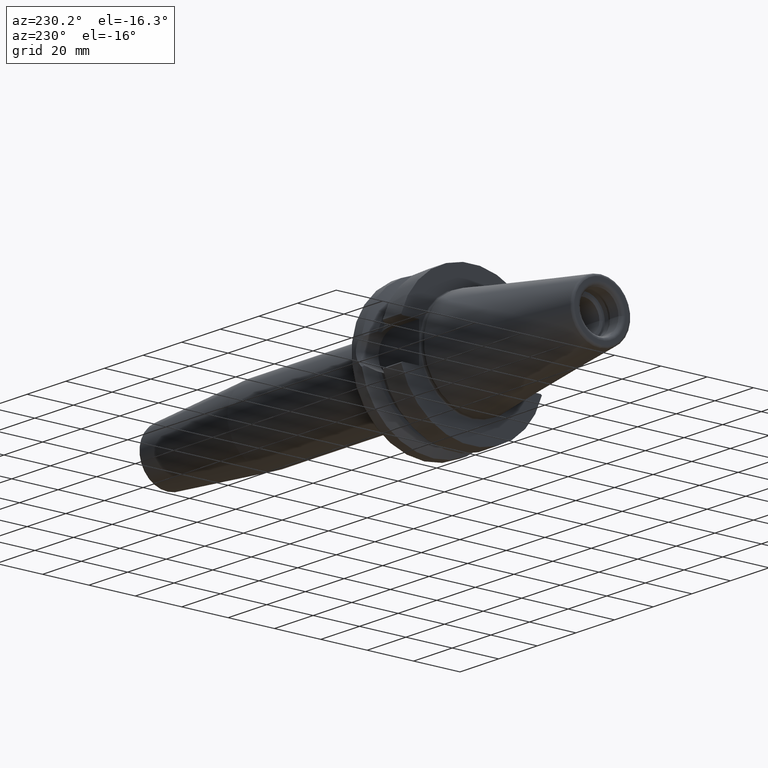
[diagram: clean part render]
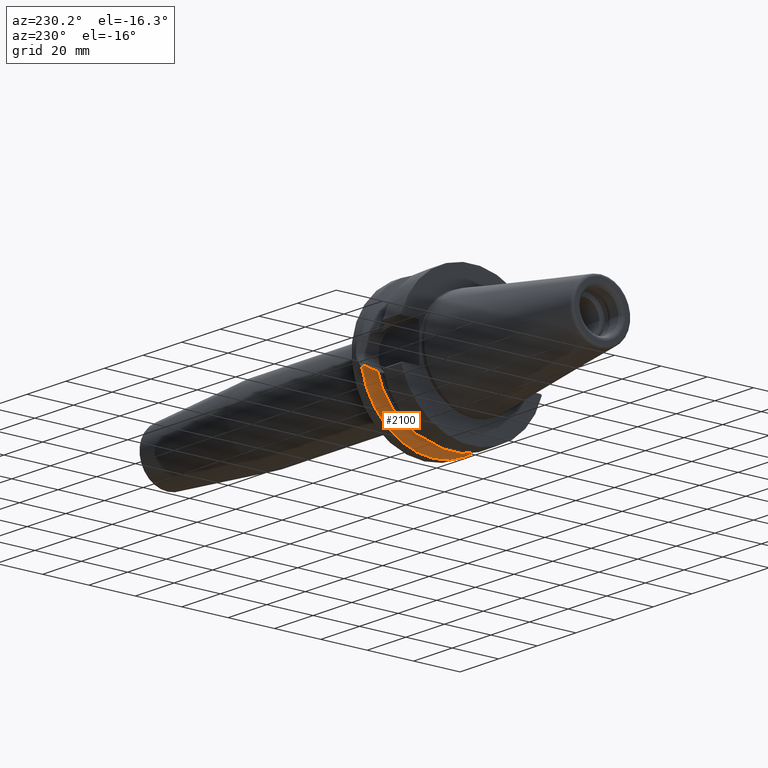
[diagram: same view with one face highlighted and labeled with its STEP entity id]
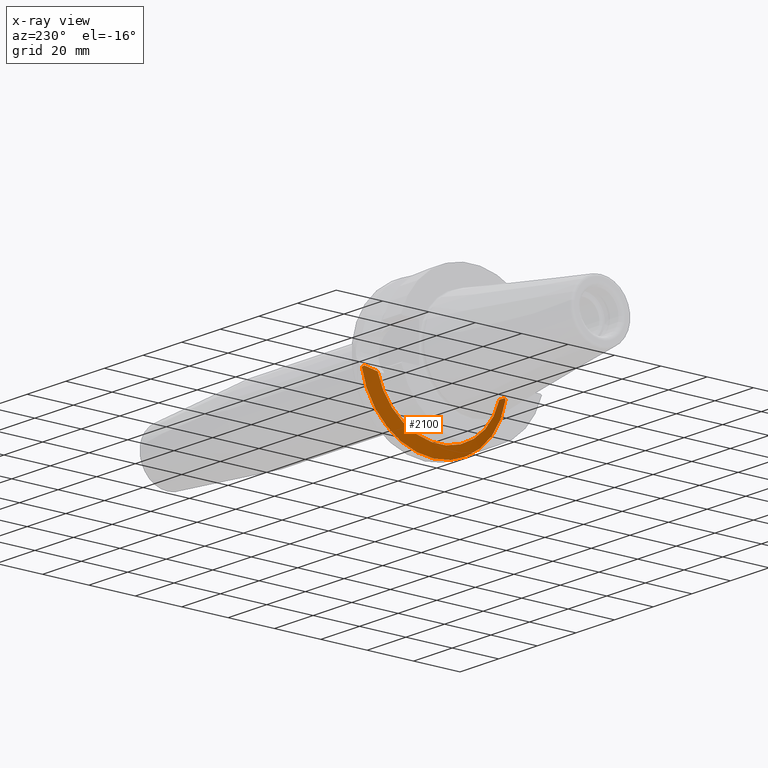
[diagram: x-ray of the same camera — body ghosted, the highlighted face saturated]
A machine part, auxiliary view. The second image highlights one B-rep face of the part: STEP entity #2100.
The next image is the same camera in x-ray: the body ghosted, the highlighted face saturated — about 5% of this face is hidden behind the body in this view.
In plain terms, the highlighted conical surface has half-angle 60 deg.
Its self-contained STEP definition (entity closure, byte-faithful):
#556=CARTESIAN_POINT('',(2.117998131741E1,-3.029289531603E1,-5.098022438631E0));
#557=CARTESIAN_POINT('',(2.125098636771E1,-3.040276279849E1,-5.186240369507E0));
#558=CARTESIAN_POINT('',(2.139712436014E1,-3.062857704635E1,-5.366851324556E0));
#559=CARTESIAN_POINT('',(2.155161117429E1,-3.086661835544E1,-5.555829756867E0));
#560=CARTESIAN_POINT('',(2.16309635E1,-3.098871085802E1,-5.652415356123E0));
#562=CARTESIAN_POINT('',(2.16309635E1,0.E0,0.E0));
#563=DIRECTION('',(1.E0,0.E0,0.E0));
#564=DIRECTION('',(0.E0,-9.837685986673E-1,-1.794417573372E-1));
#565=AXIS2_PLACEMENT_3D('',#562,#563,#564);
#567=CARTESIAN_POINT('',(2.16309635E1,0.E0,0.E0));
#568=DIRECTION('',(1.E0,0.E0,0.E0));
#569=DIRECTION('',(0.E0,0.E0,-1.E0));
#570=AXIS2_PLACEMENT_3D('',#567,#568,#569);
#572=CARTESIAN_POINT('',(2.117998131741E1,3.029289531603E1,-5.098022438631E0));
#573=CARTESIAN_POINT('',(2.125348414074E1,3.040662765083E1,-5.189343646915E0));
#574=CARTESIAN_POINT('',(2.140215551002E1,3.063633978232E1,-5.373035076681E0));
#575=CARTESIAN_POINT('',(2.155414334301E1,3.087051438261E1,-5.558911847172E0));
#576=CARTESIAN_POINT('',(2.16309635E1,3.098871085802E1,-5.652415356123E0));
#595=CARTESIAN_POINT('',(2.117998131741E1,-3.029289531603E1,-5.098022438631E0));
#596=CARTESIAN_POINT('',(2.099357945593E1,-2.992716271349E1,-5.325812749184E0));
#597=CARTESIAN_POINT('',(2.059086834754E1,-2.913753076905E1,-5.766648249127E0));
#598=CARTESIAN_POINT('',(1.990303269829E1,-2.779127514901E1,-6.368641630073E0));
#599=CARTESIAN_POINT('',(1.937816045766E1,-2.676643204292E1,-6.730473604449E0));
#600=CARTESIAN_POINT('',(1.91E1,-2.622423715090E1,-6.897825744392E0));
#669=CARTESIAN_POINT('',(1.91E1,0.E0,0.E0));
#670=DIRECTION('',(1.E0,0.E0,0.E0));
#671=DIRECTION('',(0.E0,-9.671043850984E-1,-2.543798504666E-1));
#672=AXIS2_PLACEMENT_3D('',#669,#670,#671);
#715=CARTESIAN_POINT('',(1.91E1,2.622423715090E1,-6.897825744392E0));
#716=CARTESIAN_POINT('',(1.931270939664E1,2.663885376935E1,-6.769851506023E0));
#717=CARTESIAN_POINT('',(1.971780615998E1,2.742950321941E1,-6.499305607373E0));
#718=CARTESIAN_POINT('',(2.026354286535E1,2.849673598439E1,-6.060161450422E0));
#719=CARTESIAN_POINT('',(2.075152484592E1,2.945251334633E1,-5.593981638638E0));
#720=CARTESIAN_POINT('',(2.104302502496E1,3.002417814296E1,-5.265388344428E0));
#721=CARTESIAN_POINT('',(2.117998131741E1,3.029289531603E1,-5.098022438631E0));
#759=CARTESIAN_POINT('',(2.16309635E1,3.098871085802E1,-5.652415356123E0));
#1047=CARTESIAN_POINT('',(1.91E1,2.622423715090E1,-6.897825744392E0));
#1049=VERTEX_POINT('',#1047);
#1070=CARTESIAN_POINT('',(2.16309635E1,0.E0,-3.15E1));
#1071=VERTEX_POINT('',#1070);
#1139=VERTEX_POINT('',#759);
#1144=VERTEX_POINT('',#572);
#1184=VERTEX_POINT('',#556);
#1185=VERTEX_POINT('',#560);
#1186=VERTEX_POINT('',#600);
#2080=CARTESIAN_POINT('',(2.036548175E1,0.E0,0.E0));
#2081=DIRECTION('',(1.E0,0.E0,0.E0));
#2082=DIRECTION('',(0.E0,0.E0,1.E0));
#2083=AXIS2_PLACEMENT_3D('',#2080,#2081,#2082);
#2084=CONICAL_SURFACE('',#2083,2.930812131295E1,6.E1);
#2086=ORIENTED_EDGE('',*,*,#2085,.F.);
#2088=ORIENTED_EDGE('',*,*,#2087,.F.);
#2090=ORIENTED_EDGE('',*,*,#2089,.T.);
#2091=ORIENTED_EDGE('',*,*,#2045,.T.);
#2093=ORIENTED_EDGE('',*,*,#2092,.T.);
#2095=ORIENTED_EDGE('',*,*,#2094,.F.);
#2097=ORIENTED_EDGE('',*,*,#2096,.F.);
#2098=EDGE_LOOP('',(#2086,#2088,#2090,#2091,#2093,#2095,#2097));
#2099=FACE_OUTER_BOUND('',#2098,.F.);
#2100=ADVANCED_FACE('',(#2099),#2084,.T.);
#561=B_SPLINE_CURVE_WITH_KNOTS('',3,(#556,#557,#558,#559,#560),.UNSPECIFIED.,
.F.,.F.,(4,1,4),(0.E0,5.E-1,1.E0),.UNSPECIFIED.);
#566=CIRCLE('',#565,3.15E1);
#571=CIRCLE('',#570,3.15E1);
#577=B_SPLINE_CURVE_WITH_KNOTS('',3,(#572,#573,#574,#575,#576),.UNSPECIFIED.,
.F.,.F.,(4,1,4),(0.E0,5.E-1,1.E0),.UNSPECIFIED.);
#601=B_SPLINE_CURVE_WITH_KNOTS('',3,(#595,#596,#597,#598,#599,#600),
.UNSPECIFIED.,.F.,.F.,(4,1,1,4),(0.E0,3.333333333333E-1,6.666666666667E-1,1.E0),
.UNSPECIFIED.);
#673=CIRCLE('',#672,2.711624262590E1);
#722=B_SPLINE_CURVE_WITH_KNOTS('',3,(#715,#716,#717,#718,#719,#720,#721),
.UNSPECIFIED.,.F.,.F.,(4,1,1,1,4),(0.E0,2.5E-1,5.E-1,7.5E-1,1.E0),
.UNSPECIFIED.);
#2045=EDGE_CURVE('',#1185,#1071,#566,.T.);
#2085=EDGE_CURVE('',#1186,#1049,#673,.T.);
#2087=EDGE_CURVE('',#1184,#1186,#601,.T.);
#2089=EDGE_CURVE('',#1184,#1185,#561,.T.);
#2092=EDGE_CURVE('',#1071,#1139,#571,.T.);
#2094=EDGE_CURVE('',#1144,#1139,#577,.T.);
#2096=EDGE_CURVE('',#1049,#1144,#722,.T.);